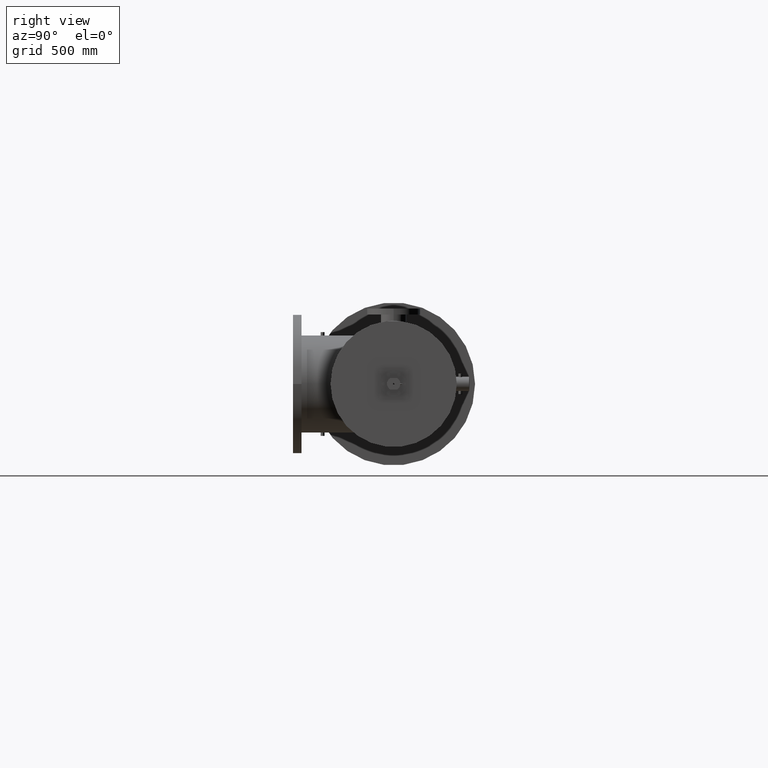
[diagram: clean part render]
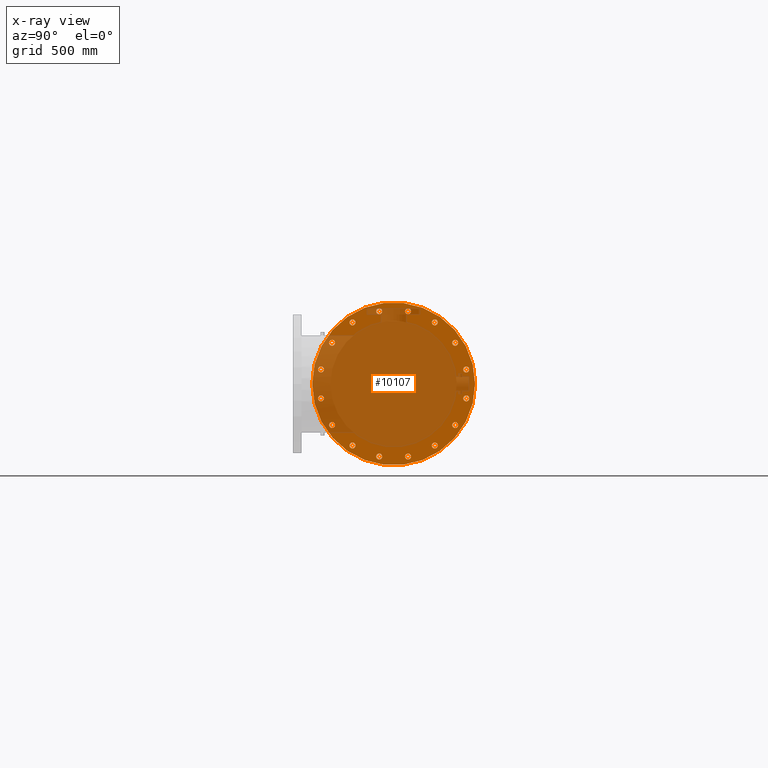
[diagram: x-ray — body ghosted, one internal face saturated and labeled with its STEP entity id]
A machine part, right view, then the same camera in x-ray: the body is ghosted and one INTERNAL B-rep face — a face not visible from any outside direction — is saturated and labeled: STEP entity #10107.
In plain terms, the highlighted planar face has unit normal (-1, -0, 0).
Its self-contained STEP definition (entity closure, byte-faithful):
#32 = AXIS2_PLACEMENT_3D ( 'NONE', #17482, #186, #13048 ) ;
#104 = DIRECTION ( 'NONE',  ( 0.0000000000000000000, -1.000000000000000000, 0.0000000000000000000 ) ) ;
#124 = AXIS2_PLACEMENT_3D ( 'NONE', #16748, #1699, #25610 ) ;
#158 = AXIS2_PLACEMENT_3D ( 'NONE', #20645, #11906, #7700 ) ;
#186 = DIRECTION ( 'NONE',  ( 1.000000000000000000, 7.582751577510925543E-17, 0.0000000000000000000 ) ) ;
#204 = ORIENTED_EDGE ( 'NONE', *, *, #6439, .T. ) ;
#326 = VERTEX_POINT ( 'NONE', #19452 ) ;
#472 = EDGE_LOOP ( 'NONE', ( #14322, #22696 ) ) ;
#480 = ORIENTED_EDGE ( 'NONE', *, *, #10371, .T. ) ;
#490 = EDGE_LOOP ( 'NONE', ( #6367, #18081 ) ) ;
#525 = ORIENTED_EDGE ( 'NONE', *, *, #10905, .T. ) ;
#617 = FACE_BOUND ( 'NONE', #23330, .T. ) ;
#733 = EDGE_LOOP ( 'NONE', ( #22427, #25601 ) ) ;
#884 = EDGE_CURVE ( 'NONE', #26058, #3836, #10950, .T. ) ;
#923 = CARTESIAN_POINT ( 'NONE',  ( 1.759999999999956044, 2.438629025201056510, 11.75981600504020363 ) ) ;
#1007 = DIRECTION ( 'NONE',  ( 1.000000000000000000, 7.582751577510925543E-17, 0.0000000000000000000 ) ) ;
#1313 = CARTESIAN_POINT ( 'NONE',  ( 1.759999999999957154, -10.39337015378175799, -6.944627912745749754 ) ) ;
#1327 = EDGE_CURVE ( 'NONE', #18186, #2500, #11593, .T. ) ;
#1337 = CARTESIAN_POINT ( 'NONE',  ( 1.759999999999957154, -10.39337015378224294, 7.444627912744373077 ) ) ;
#1412 = DIRECTION ( 'NONE',  ( -1.000000000000000000, -7.582751577510925543E-17, 0.0000000000000000000 ) ) ;
#1499 = DIRECTION ( 'NONE',  ( 0.0000000000000000000, -1.000000000000000000, 0.0000000000000000000 ) ) ;
#1632 = EDGE_CURVE ( 'NONE', #24785, #12988, #6811, .T. ) ;
#1655 = DIRECTION ( 'NONE',  ( 1.000000000000000000, 7.582751577510925543E-17, 0.0000000000000000000 ) ) ;
#1699 = DIRECTION ( 'NONE',  ( 1.000000000000000000, 7.582751577510925543E-17, 0.0000000000000000000 ) ) ;
#1814 = AXIS2_PLACEMENT_3D ( 'NONE', #5263, #20486, #5171 ) ;
#1906 = CARTESIAN_POINT ( 'NONE',  ( 1.759999999999957154, -10.39337015378175799, -6.944627912745749754 ) ) ;
#2003 = DIRECTION ( 'NONE',  ( 0.0000000000000000000, -1.000000000000000000, 0.0000000000000000000 ) ) ;
#2012 = EDGE_CURVE ( 'NONE', #19261, #24005, #3327, .T. ) ;
#2087 = CARTESIAN_POINT ( 'NONE',  ( 1.759999999999956044, -2.438629025201318967, -12.75981600504085023 ) ) ;
#2195 = DIRECTION ( 'NONE',  ( 0.0000000000000000000, -1.000000000000000000, 0.0000000000000000000 ) ) ;
#2246 = DIRECTION ( 'NONE',  ( 0.0000000000000000000, -1.000000000000000000, 0.0000000000000000000 ) ) ;
#2337 = VERTEX_POINT ( 'NONE', #27409 ) ;
#2348 = CARTESIAN_POINT ( 'NONE',  ( 1.759999999999956044, -6.944627912745557907, 10.89337015378129792 ) ) ;
#2366 = CARTESIAN_POINT ( 'NONE',  ( 1.759999999999956044, -2.438629025201318967, -11.75981600504085911 ) ) ;
#2500 = VERTEX_POINT ( 'NONE', #21798 ) ;
#2538 = CARTESIAN_POINT ( 'NONE',  ( 1.759999999999956044, -2.438629025202180056, 12.25981600504002422 ) ) ;
#2687 = DIRECTION ( 'NONE',  ( 0.0000000000000000000, -1.000000000000000000, 0.0000000000000000000 ) ) ;
#2714 = EDGE_CURVE ( 'NONE', #24005, #19261, #26410, .T. ) ;
#2747 = CIRCLE ( 'NONE', #25087, 0.4999999999999952260 ) ;
#2782 = DIRECTION ( 'NONE',  ( 0.0000000000000000000, -1.000000000000000000, 0.0000000000000000000 ) ) ;
#2847 = EDGE_CURVE ( 'NONE', #19978, #13916, #23386, .T. ) ;
#2927 = DIRECTION ( 'NONE',  ( 1.000000000000000000, 7.582751577510925543E-17, 0.0000000000000000000 ) ) ;
#3061 = CARTESIAN_POINT ( 'NONE',  ( 1.759999999999957154, -10.39337015378175799, -7.444627912745754195 ) ) ;
#3073 = ORIENTED_EDGE ( 'NONE', *, *, #5951, .T. ) ;
#3078 = DIRECTION ( 'NONE',  ( 1.000000000000000000, 7.582751577510925543E-17, 0.0000000000000000000 ) ) ;
#3097 = VERTEX_POINT ( 'NONE', #11486 ) ;
#3295 = DIRECTION ( 'NONE',  ( 1.000000000000000000, 7.582751577510925543E-17, 0.0000000000000000000 ) ) ;
#3327 = CIRCLE ( 'NONE', #8176, 0.4999999999999952260 ) ;
#3402 = AXIS2_PLACEMENT_3D ( 'NONE', #16123, #3078, #2782 ) ;
#3403 = EDGE_CURVE ( 'NONE', #22930, #3665, #8754, .T. ) ;
#3662 = AXIS2_PLACEMENT_3D ( 'NONE', #24318, #17796, #11265 ) ;
#3665 = VERTEX_POINT ( 'NONE', #16367 ) ;
#3670 = FACE_BOUND ( 'NONE', #472, .T. ) ;
#3740 = CARTESIAN_POINT ( 'NONE',  ( 1.759999999999956044, -2.438629025202180056, 12.25981600504002422 ) ) ;
#3836 = VERTEX_POINT ( 'NONE', #11024 ) ;
#3844 = AXIS2_PLACEMENT_3D ( 'NONE', #3740, #4379, #24183 ) ;
#3921 = CIRCLE ( 'NONE', #18526, 0.4999999999999952260 ) ;
#3989 = DIRECTION ( 'NONE',  ( 1.000000000000000000, 7.582751577510925543E-17, 0.0000000000000000000 ) ) ;
#4003 = FACE_BOUND ( 'NONE', #25222, .T. ) ;
#4027 = FACE_BOUND ( 'NONE', #733, .T. ) ;
#4179 = CARTESIAN_POINT ( 'NONE',  ( 1.759999999999954934, 12.25981600504039548, -2.938629025201515255 ) ) ;
#4181 = DIRECTION ( 'NONE',  ( 1.000000000000000000, 7.582751577510925543E-17, 0.0000000000000000000 ) ) ;
#4225 = CARTESIAN_POINT ( 'NONE',  ( 1.759999999999957154, -12.25981600504048785, -2.938629025202371903 ) ) ;
#4253 = CIRCLE ( 'NONE', #5257, 0.5000000000000039968 ) ;
#4379 = DIRECTION ( 'NONE',  ( 1.000000000000000000, 7.582751577510925543E-17, 0.0000000000000000000 ) ) ;
#4638 = CARTESIAN_POINT ( 'NONE',  ( 1.759999999999956044, 2.438629025201911382, -12.25981600504068858 ) ) ;
#4647 = DIRECTION ( 'NONE',  ( 1.000000000000000000, 7.582751577510925543E-17, 0.0000000000000000000 ) ) ;
#4661 = CIRCLE ( 'NONE', #3662, 13.74907756121482194 ) ;
#4780 = VERTEX_POINT ( 'NONE', #2087 ) ;
#4981 = AXIS2_PLACEMENT_3D ( 'NONE', #4638, #6564, #2246 ) ;
#5042 = DIRECTION ( 'NONE',  ( 0.0000000000000000000, -1.000000000000000000, 0.0000000000000000000 ) ) ;
#5051 = FACE_BOUND ( 'NONE', #27774, .T. ) ;
#5171 = DIRECTION ( 'NONE',  ( 0.0000000000000000000, -1.000000000000000000, 0.0000000000000000000 ) ) ;
#5257 = AXIS2_PLACEMENT_3D ( 'NONE', #1313, #16542, #1499 ) ;
#5263 = CARTESIAN_POINT ( 'NONE',  ( 1.759999999999954934, 12.25981600504022495, 2.438629025201720868 ) ) ;
#5298 = DIRECTION ( 'NONE',  ( -1.000000000000000000, -7.582751577510925543E-17, -0.0000000000000000000 ) ) ;
#5636 = EDGE_CURVE ( 'NONE', #14369, #13494, #6607, .T. ) ;
#5760 = CARTESIAN_POINT ( 'NONE',  ( 1.759999999999954934, 10.39337015378149331, 6.444627912745098719 ) ) ;
#5854 = AXIS2_PLACEMENT_3D ( 'NONE', #8285, #8466, #12941 ) ;
#5940 = ORIENTED_EDGE ( 'NONE', *, *, #884, .T. ) ;
#5951 = EDGE_CURVE ( 'NONE', #3836, #26058, #13731, .T. ) ;
#6037 = DIRECTION ( 'NONE',  ( 0.0000000000000000000, -1.000000000000000000, 0.0000000000000000000 ) ) ;
#6102 = FACE_BOUND ( 'NONE', #14830, .T. ) ;
#6199 = CARTESIAN_POINT ( 'NONE',  ( 1.759999999999957154, -10.39337015378175799, -6.444627912745746201 ) ) ;
#6296 = EDGE_CURVE ( 'NONE', #22340, #27843, #15055, .T. ) ;
#6348 = EDGE_CURVE ( 'NONE', #23331, #9750, #22206, .T. ) ;
#6367 = ORIENTED_EDGE ( 'NONE', *, *, #18659, .T. ) ;
#6413 = EDGE_CURVE ( 'NONE', #23862, #2337, #23927, .T. ) ;
#6422 = DIRECTION ( 'NONE',  ( 1.000000000000000000, 7.582751577510925543E-17, 0.0000000000000000000 ) ) ;
#6424 = FACE_BOUND ( 'NONE', #25689, .T. ) ;
#6439 = EDGE_CURVE ( 'NONE', #11280, #4780, #2747, .T. ) ;
#6446 = CIRCLE ( 'NONE', #3844, 0.4999999999999952260 ) ;
#6502 = AXIS2_PLACEMENT_3D ( 'NONE', #18395, #5298, #26978 ) ;
#6553 = CIRCLE ( 'NONE', #27498, 0.5000000000000039968 ) ;
#6564 = DIRECTION ( 'NONE',  ( 1.000000000000000000, 7.582751577510925543E-17, 0.0000000000000000000 ) ) ;
#6586 = CIRCLE ( 'NONE', #124, 0.5000000000000039968 ) ;
#6607 = CIRCLE ( 'NONE', #19719, 0.4999999999999952260 ) ;
#6745 = FACE_BOUND ( 'NONE', #12479, .T. ) ;
#6811 = CIRCLE ( 'NONE', #6502, 13.74907756121482194 ) ;
#6942 = CARTESIAN_POINT ( 'NONE',  ( 1.759999999999954934, 10.39337015378149331, 6.944627912745094278 ) ) ;
#7029 = CARTESIAN_POINT ( 'NONE',  ( 1.759999999999954934, 10.39337015378198004, -6.944627912745024112 ) ) ;
#7158 = CARTESIAN_POINT ( 'NONE',  ( 1.759999999999956044, 6.944627912744573806, 10.89337015378177043 ) ) ;
#7302 = AXIS2_PLACEMENT_3D ( 'NONE', #7998, #1412, #18321 ) ;
#7444 = AXIS2_PLACEMENT_3D ( 'NONE', #8998, #21461, #19255 ) ;
#7447 = FACE_BOUND ( 'NONE', #490, .T. ) ;
#7499 = CARTESIAN_POINT ( 'NONE',  ( 1.759999999999954934, 13.74907756121482194, 1.683776382657042859E-15 ) ) ;
#7700 = DIRECTION ( 'NONE',  ( 0.0000000000000000000, -1.000000000000000000, 0.0000000000000000000 ) ) ;
#7998 = CARTESIAN_POINT ( 'NONE',  ( 1.759999999999955600, 3.952730659692635219E-32, 0.0000000000000000000 ) ) ;
#8040 = ORIENTED_EDGE ( 'NONE', *, *, #8794, .T. ) ;
#8106 = AXIS2_PLACEMENT_3D ( 'NONE', #26711, #22447, #11316 ) ;
#8176 = AXIS2_PLACEMENT_3D ( 'NONE', #23847, #23745, #21637 ) ;
#8285 = CARTESIAN_POINT ( 'NONE',  ( 1.759999999999956044, 2.438629025201056510, 12.25981600504019831 ) ) ;
#8373 = DIRECTION ( 'NONE',  ( 0.0000000000000000000, -1.000000000000000000, 0.0000000000000000000 ) ) ;
#8466 = DIRECTION ( 'NONE',  ( 1.000000000000000000, 7.582751577510925543E-17, 0.0000000000000000000 ) ) ;
#8570 = CARTESIAN_POINT ( 'NONE',  ( 1.759999999999956044, 2.438629025201056510, 12.25981600504019831 ) ) ;
#8717 = VERTEX_POINT ( 'NONE', #6199 ) ;
#8753 = DIRECTION ( 'NONE',  ( 1.000000000000000000, 7.582751577510925543E-17, 0.0000000000000000000 ) ) ;
#8754 = CIRCLE ( 'NONE', #7444, 0.4999999999999952260 ) ;
#8794 = EDGE_CURVE ( 'NONE', #3665, #22930, #26190, .T. ) ;
#8884 = EDGE_LOOP ( 'NONE', ( #204, #14920 ) ) ;
#8998 = CARTESIAN_POINT ( 'NONE',  ( 1.759999999999957154, -10.39337015378224294, 6.944627912744377518 ) ) ;
#9014 = EDGE_CURVE ( 'NONE', #26036, #27899, #21426, .T. ) ;
#9094 = CIRCLE ( 'NONE', #1814, 0.4999999999999952260 ) ;
#9141 = CARTESIAN_POINT ( 'NONE',  ( 1.759999999999956044, 2.438629025201056510, 12.75981600504019475 ) ) ;
#9196 = CARTESIAN_POINT ( 'NONE',  ( 1.759999999999954934, 12.25981600504039548, -2.438629025201520140 ) ) ;
#9307 = CARTESIAN_POINT ( 'NONE',  ( 1.759999999999956044, 6.944627912744573806, 10.39337015378177576 ) ) ;
#9414 = AXIS2_PLACEMENT_3D ( 'NONE', #25773, #25504, #8373 ) ;
#9419 = DIRECTION ( 'NONE',  ( 1.000000000000000000, 7.582751577510925543E-17, 0.0000000000000000000 ) ) ;
#9498 = CIRCLE ( 'NONE', #32, 0.4999999999999952260 ) ;
#9514 = PLANE ( 'NONE',  #7302 ) ;
#9750 = VERTEX_POINT ( 'NONE', #923 ) ;
#9963 = ORIENTED_EDGE ( 'NONE', *, *, #17712, .T. ) ;
#10107 = ADVANCED_FACE ( 'NONE', ( #23788, #12235, #19014, #6424, #13248, #617, #4027, #7447, #14933, #25821, #6102, #5051, #6745, #4003, #3670, #19694, #26458 ), #9514, .T. ) ;
#10288 = EDGE_CURVE ( 'NONE', #9750, #23331, #21374, .T. ) ;
#10299 = AXIS2_PLACEMENT_3D ( 'NONE', #1906, #10583, #6037 ) ;
#10371 = EDGE_CURVE ( 'NONE', #3097, #22057, #25484, .T. ) ;
#10583 = DIRECTION ( 'NONE',  ( 1.000000000000000000, 7.582751577510925543E-17, 0.0000000000000000000 ) ) ;
#10591 = ORIENTED_EDGE ( 'NONE', *, *, #12886, .T. ) ;
#10610 = CARTESIAN_POINT ( 'NONE',  ( 1.759999999999956044, 2.438629025201911382, -11.75981600504069391 ) ) ;
#10751 = DIRECTION ( 'NONE',  ( 0.0000000000000000000, -1.000000000000000000, 0.0000000000000000000 ) ) ;
#10905 = EDGE_CURVE ( 'NONE', #12988, #24785, #4661, .T. ) ;
#10950 = CIRCLE ( 'NONE', #20329, 0.4999999999999952260 ) ;
#11024 = CARTESIAN_POINT ( 'NONE',  ( 1.759999999999954934, 12.25981600504039548, -1.938629025201524581 ) ) ;
#11265 = DIRECTION ( 'NONE',  ( 7.947727348256769457E-17, -1.000000000000000000, 0.0000000000000000000 ) ) ;
#11280 = VERTEX_POINT ( 'NONE', #2366 ) ;
#11305 = DIRECTION ( 'NONE',  ( 0.0000000000000000000, -1.000000000000000000, 0.0000000000000000000 ) ) ;
#11316 = DIRECTION ( 'NONE',  ( 0.0000000000000000000, -1.000000000000000000, 0.0000000000000000000 ) ) ;
#11486 = CARTESIAN_POINT ( 'NONE',  ( 1.759999999999956044, 6.944627912745293230, -10.89337015378195339 ) ) ;
#11593 = CIRCLE ( 'NONE', #9414, 0.4999999999999955036 ) ;
#11609 = DIRECTION ( 'NONE',  ( 0.0000000000000000000, -1.000000000000000000, 0.0000000000000000000 ) ) ;
#11906 = DIRECTION ( 'NONE',  ( 1.000000000000000000, 7.582751577510925543E-17, 0.0000000000000000000 ) ) ;
#12206 = CIRCLE ( 'NONE', #14592, 0.5000000000000039968 ) ;
#12235 = FACE_BOUND ( 'NONE', #22758, .T. ) ;
#12479 = EDGE_LOOP ( 'NONE', ( #14012, #15489 ) ) ;
#12710 = ORIENTED_EDGE ( 'NONE', *, *, #27083, .T. ) ;
#12831 = CARTESIAN_POINT ( 'NONE',  ( 1.759999999999954934, 12.25981600504022495, 2.938629025201716427 ) ) ;
#12886 = EDGE_CURVE ( 'NONE', #23667, #17004, #24317, .T. ) ;
#12941 = DIRECTION ( 'NONE',  ( 0.0000000000000000000, -1.000000000000000000, 0.0000000000000000000 ) ) ;
#12988 = VERTEX_POINT ( 'NONE', #7499 ) ;
#13012 = ORIENTED_EDGE ( 'NONE', *, *, #20179, .T. ) ;
#13048 = DIRECTION ( 'NONE',  ( 0.0000000000000000000, -1.000000000000000000, 0.0000000000000000000 ) ) ;
#13066 = ORIENTED_EDGE ( 'NONE', *, *, #3403, .T. ) ;
#13079 = CARTESIAN_POINT ( 'NONE',  ( 1.759999999999956044, -6.944627912744832265, -10.39337015378244011 ) ) ;
#13176 = ORIENTED_EDGE ( 'NONE', *, *, #24023, .T. ) ;
#13232 = DIRECTION ( 'NONE',  ( 0.0000000000000000000, -1.000000000000000000, 0.0000000000000000000 ) ) ;
#13248 = FACE_BOUND ( 'NONE', #8884, .T. ) ;
#13331 = DIRECTION ( 'NONE',  ( 0.0000000000000000000, -1.000000000000000000, 0.0000000000000000000 ) ) ;
#13356 = ORIENTED_EDGE ( 'NONE', *, *, #6413, .T. ) ;
#13402 = ORIENTED_EDGE ( 'NONE', *, *, #17070, .T. ) ;
#13408 = DIRECTION ( 'NONE',  ( 0.0000000000000000000, -1.000000000000000000, 0.0000000000000000000 ) ) ;
#13419 = DIRECTION ( 'NONE',  ( 1.000000000000000000, 7.582751577510925543E-17, 0.0000000000000000000 ) ) ;
#13494 = VERTEX_POINT ( 'NONE', #2348 ) ;
#13731 = CIRCLE ( 'NONE', #15944, 0.4999999999999952260 ) ;
#13916 = VERTEX_POINT ( 'NONE', #16883 ) ;
#13986 = DIRECTION ( 'NONE',  ( 0.0000000000000000000, -1.000000000000000000, 0.0000000000000000000 ) ) ;
#14001 = VERTEX_POINT ( 'NONE', #25391 ) ;
#14012 = ORIENTED_EDGE ( 'NONE', *, *, #6348, .T. ) ;
#14074 = CARTESIAN_POINT ( 'NONE',  ( 1.759999999999956044, -2.438629025202180056, 12.75981600504001889 ) ) ;
#14281 = ORIENTED_EDGE ( 'NONE', *, *, #25032, .T. ) ;
#14322 = ORIENTED_EDGE ( 'NONE', *, *, #2012, .T. ) ;
#14346 = EDGE_CURVE ( 'NONE', #8717, #15954, #26932, .T. ) ;
#14369 = VERTEX_POINT ( 'NONE', #21251 ) ;
#14592 = AXIS2_PLACEMENT_3D ( 'NONE', #18123, #1007, #20159 ) ;
#14599 = AXIS2_PLACEMENT_3D ( 'NONE', #21676, #19689, #21952 ) ;
#14830 = EDGE_LOOP ( 'NONE', ( #19789, #25916 ) ) ;
#14869 = AXIS2_PLACEMENT_3D ( 'NONE', #8570, #8753, #10751 ) ;
#14920 = ORIENTED_EDGE ( 'NONE', *, *, #24094, .T. ) ;
#14933 = FACE_BOUND ( 'NONE', #24011, .T. ) ;
#15055 = CIRCLE ( 'NONE', #21781, 0.5000000000000039968 ) ;
#15489 = ORIENTED_EDGE ( 'NONE', *, *, #10288, .T. ) ;
#15747 = DIRECTION ( 'NONE',  ( 1.000000000000000000, 7.582751577510925543E-17, 0.0000000000000000000 ) ) ;
#15944 = AXIS2_PLACEMENT_3D ( 'NONE', #9196, #15747, #2687 ) ;
#15954 = VERTEX_POINT ( 'NONE', #3061 ) ;
#15998 = EDGE_LOOP ( 'NONE', ( #13066, #8040 ) ) ;
#16123 = CARTESIAN_POINT ( 'NONE',  ( 1.759999999999956044, -6.944627912744832265, -10.39337015378244011 ) ) ;
#16367 = CARTESIAN_POINT ( 'NONE',  ( 1.759999999999957154, -10.39337015378224294, 6.444627912744381959 ) ) ;
#16533 = CARTESIAN_POINT ( 'NONE',  ( 1.759999999999956044, -6.944627912745557907, 10.39337015378130324 ) ) ;
#16542 = DIRECTION ( 'NONE',  ( 1.000000000000000000, 7.582751577510925543E-17, 0.0000000000000000000 ) ) ;
#16585 = ORIENTED_EDGE ( 'NONE', *, *, #1327, .T. ) ;
#16603 = EDGE_CURVE ( 'NONE', #15954, #8717, #4253, .T. ) ;
#16634 = VERTEX_POINT ( 'NONE', #23207 ) ;
#16701 = DIRECTION ( 'NONE',  ( 0.0000000000000000000, -1.000000000000000000, 0.0000000000000000000 ) ) ;
#16748 = CARTESIAN_POINT ( 'NONE',  ( 1.759999999999956044, 6.944627912745293230, -10.39337015378194984 ) ) ;
#16883 = CARTESIAN_POINT ( 'NONE',  ( 1.759999999999957154, -12.25981600504048785, -1.938629025202363909 ) ) ;
#16906 = CIRCLE ( 'NONE', #22494, 0.4999999999999952260 ) ;
#16948 = EDGE_CURVE ( 'NONE', #14001, #16634, #23680, .T. ) ;
#17004 = VERTEX_POINT ( 'NONE', #27151 ) ;
#17070 = EDGE_CURVE ( 'NONE', #16634, #14001, #3921, .T. ) ;
#17482 = CARTESIAN_POINT ( 'NONE',  ( 1.759999999999956044, -2.438629025201318967, -12.25981600504085556 ) ) ;
#17660 = DIRECTION ( 'NONE',  ( 1.000000000000000000, 7.582751577510925543E-17, 0.0000000000000000000 ) ) ;
#17712 = EDGE_CURVE ( 'NONE', #2337, #23862, #6553, .T. ) ;
#17796 = DIRECTION ( 'NONE',  ( -1.000000000000000000, -7.582751577510925543E-17, -0.0000000000000000000 ) ) ;
#17914 = AXIS2_PLACEMENT_3D ( 'NONE', #9307, #26601, #11305 ) ;
#18081 = ORIENTED_EDGE ( 'NONE', *, *, #2847, .T. ) ;
#18123 = CARTESIAN_POINT ( 'NONE',  ( 1.759999999999957154, -12.25981600504048785, -2.438629025202367906 ) ) ;
#18186 = VERTEX_POINT ( 'NONE', #10610 ) ;
#18294 = AXIS2_PLACEMENT_3D ( 'NONE', #2538, #13419, #13331 ) ;
#18321 = DIRECTION ( 'NONE',  ( 7.582751577510925543E-17, -1.000000000000000000, 0.0000000000000000000 ) ) ;
#18395 = CARTESIAN_POINT ( 'NONE',  ( 1.759999999999956044, 1.708298909375056226E-16, 0.0000000000000000000 ) ) ;
#18493 = ORIENTED_EDGE ( 'NONE', *, *, #25987, .T. ) ;
#18526 = AXIS2_PLACEMENT_3D ( 'NONE', #13079, #24215, #2003 ) ;
#18535 = CIRCLE ( 'NONE', #18294, 0.4999999999999952260 ) ;
#18659 = EDGE_CURVE ( 'NONE', #13916, #19978, #12206, .T. ) ;
#19014 = FACE_BOUND ( 'NONE', #25399, .T. ) ;
#19022 = CARTESIAN_POINT ( 'NONE',  ( 1.759999999999957154, -12.25981600504065838, 2.438629025200864220 ) ) ;
#19166 = CARTESIAN_POINT ( 'NONE',  ( 1.759999999999954934, 12.25981600504039548, -2.438629025201520140 ) ) ;
#19255 = DIRECTION ( 'NONE',  ( 0.0000000000000000000, -1.000000000000000000, 0.0000000000000000000 ) ) ;
#19261 = VERTEX_POINT ( 'NONE', #25522 ) ;
#19452 = CARTESIAN_POINT ( 'NONE',  ( 1.759999999999956044, -2.438629025202180056, 11.75981600504002955 ) ) ;
#19631 = CARTESIAN_POINT ( 'NONE',  ( 1.759999999999957154, -12.25981600504065838, 2.938629025200868217 ) ) ;
#19660 = CIRCLE ( 'NONE', #17914, 0.4999999999999962808 ) ;
#19689 = DIRECTION ( 'NONE',  ( 1.000000000000000000, 7.582751577510925543E-17, 0.0000000000000000000 ) ) ;
#19694 = FACE_BOUND ( 'NONE', #23188, .T. ) ;
#19696 = DIRECTION ( 'NONE',  ( 0.0000000000000000000, -1.000000000000000000, 0.0000000000000000000 ) ) ;
#19719 = AXIS2_PLACEMENT_3D ( 'NONE', #16533, #3295, #13986 ) ;
#19789 = ORIENTED_EDGE ( 'NONE', *, *, #25029, .T. ) ;
#19878 = CARTESIAN_POINT ( 'NONE',  ( 1.759999999999956044, -6.944627912745557907, 10.39337015378130324 ) ) ;
#19885 = CARTESIAN_POINT ( 'NONE',  ( 1.759999999999956044, -2.438629025201318967, -12.25981600504085556 ) ) ;
#19978 = VERTEX_POINT ( 'NONE', #4225 ) ;
#20159 = DIRECTION ( 'NONE',  ( 0.0000000000000000000, -1.000000000000000000, 0.0000000000000000000 ) ) ;
#20179 = EDGE_CURVE ( 'NONE', #17004, #23667, #9094, .T. ) ;
#20329 = AXIS2_PLACEMENT_3D ( 'NONE', #19166, #1655, #16701 ) ;
#20486 = DIRECTION ( 'NONE',  ( 1.000000000000000000, 7.582751577510925543E-17, 0.0000000000000000000 ) ) ;
#20487 = CARTESIAN_POINT ( 'NONE',  ( 1.759999999999956044, 6.944627912745293230, -9.893370153781946286 ) ) ;
#20645 = CARTESIAN_POINT ( 'NONE',  ( 1.759999999999957154, -12.25981600504048785, -2.438629025202367906 ) ) ;
#20847 = EDGE_LOOP ( 'NONE', ( #27233, #525 ) ) ;
#21251 = CARTESIAN_POINT ( 'NONE',  ( 1.759999999999956044, -6.944627912745557907, 9.893370153781308574 ) ) ;
#21330 = VERTEX_POINT ( 'NONE', #14074 ) ;
#21374 = CIRCLE ( 'NONE', #5854, 0.4999999999999955036 ) ;
#21426 = CIRCLE ( 'NONE', #22593, 0.4999999999999962808 ) ;
#21461 = DIRECTION ( 'NONE',  ( 1.000000000000000000, 7.582751577510925543E-17, 0.0000000000000000000 ) ) ;
#21515 = AXIS2_PLACEMENT_3D ( 'NONE', #22351, #9419, #11609 ) ;
#21637 = DIRECTION ( 'NONE',  ( 0.0000000000000000000, -1.000000000000000000, 0.0000000000000000000 ) ) ;
#21676 = CARTESIAN_POINT ( 'NONE',  ( 1.759999999999956044, 6.944627912745293230, -10.39337015378194984 ) ) ;
#21692 = CARTESIAN_POINT ( 'NONE',  ( 1.759999999999957154, -12.25981600504065838, 2.438629025200864220 ) ) ;
#21781 = AXIS2_PLACEMENT_3D ( 'NONE', #21692, #4181, #104 ) ;
#21798 = CARTESIAN_POINT ( 'NONE',  ( 1.759999999999956044, 2.438629025201911382, -12.75981600504068325 ) ) ;
#21814 = ORIENTED_EDGE ( 'NONE', *, *, #25168, .T. ) ;
#21881 = CARTESIAN_POINT ( 'NONE',  ( 1.759999999999956044, 6.944627912744573806, 9.893370153781779308 ) ) ;
#21952 = DIRECTION ( 'NONE',  ( 0.0000000000000000000, -1.000000000000000000, 0.0000000000000000000 ) ) ;
#22057 = VERTEX_POINT ( 'NONE', #20487 ) ;
#22159 = DIRECTION ( 'NONE',  ( 0.0000000000000000000, -1.000000000000000000, 0.0000000000000000000 ) ) ;
#22206 = CIRCLE ( 'NONE', #14869, 0.4999999999999955036 ) ;
#22250 = DIRECTION ( 'NONE',  ( 1.000000000000000000, 7.582751577510925543E-17, 0.0000000000000000000 ) ) ;
#22340 = VERTEX_POINT ( 'NONE', #24003 ) ;
#22351 = CARTESIAN_POINT ( 'NONE',  ( 1.759999999999957154, -10.39337015378224294, 6.944627912744377518 ) ) ;
#22404 = ORIENTED_EDGE ( 'NONE', *, *, #16948, .T. ) ;
#22427 = ORIENTED_EDGE ( 'NONE', *, *, #14346, .T. ) ;
#22447 = DIRECTION ( 'NONE',  ( 1.000000000000000000, 7.582751577510925543E-17, 0.0000000000000000000 ) ) ;
#22494 = AXIS2_PLACEMENT_3D ( 'NONE', #19878, #17660, #19696 ) ;
#22593 = AXIS2_PLACEMENT_3D ( 'NONE', #28181, #6422, #2195 ) ;
#22696 = ORIENTED_EDGE ( 'NONE', *, *, #2714, .T. ) ;
#22758 = EDGE_LOOP ( 'NONE', ( #9963, #13356 ) ) ;
#22930 = VERTEX_POINT ( 'NONE', #1337 ) ;
#23188 = EDGE_LOOP ( 'NONE', ( #10591, #13012 ) ) ;
#23207 = CARTESIAN_POINT ( 'NONE',  ( 1.759999999999956044, -6.944627912744832265, -10.89337015378243478 ) ) ;
#23221 = CARTESIAN_POINT ( 'NONE',  ( 1.759999999999957154, -13.74907756121482194, 0.0000000000000000000 ) ) ;
#23330 = EDGE_LOOP ( 'NONE', ( #22404, #13402 ) ) ;
#23331 = VERTEX_POINT ( 'NONE', #9141 ) ;
#23368 = ORIENTED_EDGE ( 'NONE', *, *, #26127, .T. ) ;
#23386 = CIRCLE ( 'NONE', #158, 0.5000000000000039968 ) ;
#23417 = DIRECTION ( 'NONE',  ( 0.0000000000000000000, -1.000000000000000000, 0.0000000000000000000 ) ) ;
#23667 = VERTEX_POINT ( 'NONE', #12831 ) ;
#23680 = CIRCLE ( 'NONE', #3402, 0.4999999999999952260 ) ;
#23745 = DIRECTION ( 'NONE',  ( 1.000000000000000000, 7.582751577510925543E-17, 0.0000000000000000000 ) ) ;
#23788 = FACE_BOUND ( 'NONE', #27189, .T. ) ;
#23847 = CARTESIAN_POINT ( 'NONE',  ( 1.759999999999954934, 10.39337015378149331, 6.944627912745094278 ) ) ;
#23862 = VERTEX_POINT ( 'NONE', #26385 ) ;
#23927 = CIRCLE ( 'NONE', #26142, 0.5000000000000039968 ) ;
#23989 = DIRECTION ( 'NONE',  ( 1.000000000000000000, 7.582751577510925543E-17, 0.0000000000000000000 ) ) ;
#24003 = CARTESIAN_POINT ( 'NONE',  ( 1.759999999999957154, -12.25981600504065838, 1.938629025200860445 ) ) ;
#24005 = VERTEX_POINT ( 'NONE', #5760 ) ;
#24011 = EDGE_LOOP ( 'NONE', ( #18493, #25225 ) ) ;
#24023 = EDGE_CURVE ( 'NONE', #326, #21330, #6446, .T. ) ;
#24086 = CARTESIAN_POINT ( 'NONE',  ( 1.759999999999954934, 10.39337015378198004, -6.944627912745024112 ) ) ;
#24094 = EDGE_CURVE ( 'NONE', #4780, #11280, #9498, .T. ) ;
#24183 = DIRECTION ( 'NONE',  ( 0.0000000000000000000, -1.000000000000000000, 0.0000000000000000000 ) ) ;
#24215 = DIRECTION ( 'NONE',  ( 1.000000000000000000, 7.582751577510925543E-17, 0.0000000000000000000 ) ) ;
#24317 = CIRCLE ( 'NONE', #8106, 0.4999999999999952260 ) ;
#24318 = CARTESIAN_POINT ( 'NONE',  ( 1.759999999999956044, 1.708298909375056226E-16, 0.0000000000000000000 ) ) ;
#24418 = CIRCLE ( 'NONE', #4981, 0.4999999999999955036 ) ;
#24555 = AXIS2_PLACEMENT_3D ( 'NONE', #19022, #3989, #23417 ) ;
#24785 = VERTEX_POINT ( 'NONE', #23221 ) ;
#25029 = EDGE_CURVE ( 'NONE', #13494, #14369, #16906, .T. ) ;
#25032 = EDGE_CURVE ( 'NONE', #2500, #18186, #24418, .T. ) ;
#25087 = AXIS2_PLACEMENT_3D ( 'NONE', #19885, #4647, #13232 ) ;
#25168 = EDGE_CURVE ( 'NONE', #27899, #26036, #19660, .T. ) ;
#25222 = EDGE_LOOP ( 'NONE', ( #21814, #25867 ) ) ;
#25225 = ORIENTED_EDGE ( 'NONE', *, *, #6296, .T. ) ;
#25391 = CARTESIAN_POINT ( 'NONE',  ( 1.759999999999956044, -6.944627912744832265, -9.893370153782443666 ) ) ;
#25399 = EDGE_LOOP ( 'NONE', ( #12710, #480 ) ) ;
#25484 = CIRCLE ( 'NONE', #14599, 0.5000000000000039968 ) ;
#25504 = DIRECTION ( 'NONE',  ( 1.000000000000000000, 7.582751577510925543E-17, 0.0000000000000000000 ) ) ;
#25522 = CARTESIAN_POINT ( 'NONE',  ( 1.759999999999954934, 10.39337015378149331, 7.444627912745089837 ) ) ;
#25601 = ORIENTED_EDGE ( 'NONE', *, *, #16603, .T. ) ;
#25610 = DIRECTION ( 'NONE',  ( 0.0000000000000000000, -1.000000000000000000, 0.0000000000000000000 ) ) ;
#25689 = EDGE_LOOP ( 'NONE', ( #16585, #14281 ) ) ;
#25773 = CARTESIAN_POINT ( 'NONE',  ( 1.759999999999956044, 2.438629025201911382, -12.25981600504068858 ) ) ;
#25821 = FACE_BOUND ( 'NONE', #15998, .T. ) ;
#25867 = ORIENTED_EDGE ( 'NONE', *, *, #9014, .T. ) ;
#25916 = ORIENTED_EDGE ( 'NONE', *, *, #5636, .T. ) ;
#25987 = EDGE_CURVE ( 'NONE', #27843, #22340, #26705, .T. ) ;
#26036 = VERTEX_POINT ( 'NONE', #21881 ) ;
#26058 = VERTEX_POINT ( 'NONE', #4179 ) ;
#26127 = EDGE_CURVE ( 'NONE', #21330, #326, #18535, .T. ) ;
#26142 = AXIS2_PLACEMENT_3D ( 'NONE', #7029, #22250, #22159 ) ;
#26190 = CIRCLE ( 'NONE', #21515, 0.4999999999999952260 ) ;
#26385 = CARTESIAN_POINT ( 'NONE',  ( 1.759999999999954934, 10.39337015378198004, -7.444627912745028553 ) ) ;
#26410 = CIRCLE ( 'NONE', #27483, 0.4999999999999952260 ) ;
#26458 = FACE_OUTER_BOUND ( 'NONE', #20847, .T. ) ;
#26601 = DIRECTION ( 'NONE',  ( 1.000000000000000000, 7.582751577510925543E-17, 0.0000000000000000000 ) ) ;
#26705 = CIRCLE ( 'NONE', #24555, 0.5000000000000039968 ) ;
#26711 = CARTESIAN_POINT ( 'NONE',  ( 1.759999999999954934, 12.25981600504022495, 2.438629025201720868 ) ) ;
#26932 = CIRCLE ( 'NONE', #10299, 0.5000000000000039968 ) ;
#26978 = DIRECTION ( 'NONE',  ( 7.947727348256769457E-17, -1.000000000000000000, 0.0000000000000000000 ) ) ;
#27083 = EDGE_CURVE ( 'NONE', #22057, #3097, #6586, .T. ) ;
#27151 = CARTESIAN_POINT ( 'NONE',  ( 1.759999999999954934, 12.25981600504022495, 1.938629025201725531 ) ) ;
#27189 = EDGE_LOOP ( 'NONE', ( #3073, #5940 ) ) ;
#27233 = ORIENTED_EDGE ( 'NONE', *, *, #1632, .T. ) ;
#27409 = CARTESIAN_POINT ( 'NONE',  ( 1.759999999999954934, 10.39337015378198004, -6.444627912745020559 ) ) ;
#27483 = AXIS2_PLACEMENT_3D ( 'NONE', #6942, #2927, #5042 ) ;
#27498 = AXIS2_PLACEMENT_3D ( 'NONE', #24086, #23989, #13408 ) ;
#27774 = EDGE_LOOP ( 'NONE', ( #23368, #13176 ) ) ;
#27843 = VERTEX_POINT ( 'NONE', #19631 ) ;
#27899 = VERTEX_POINT ( 'NONE', #7158 ) ;
#28181 = CARTESIAN_POINT ( 'NONE',  ( 1.759999999999956044, 6.944627912744573806, 10.39337015378177576 ) ) ;